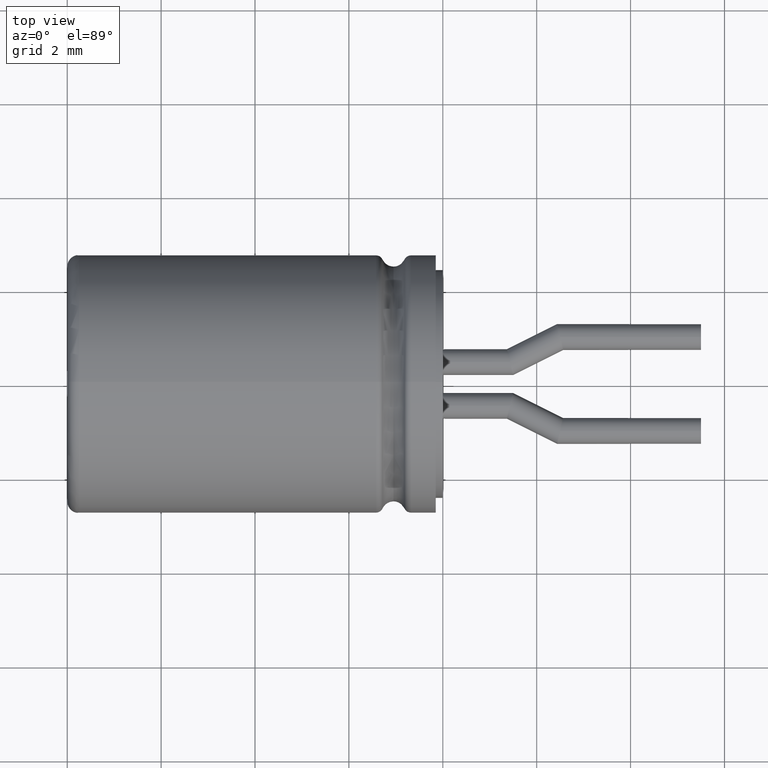
[diagram: clean part render]
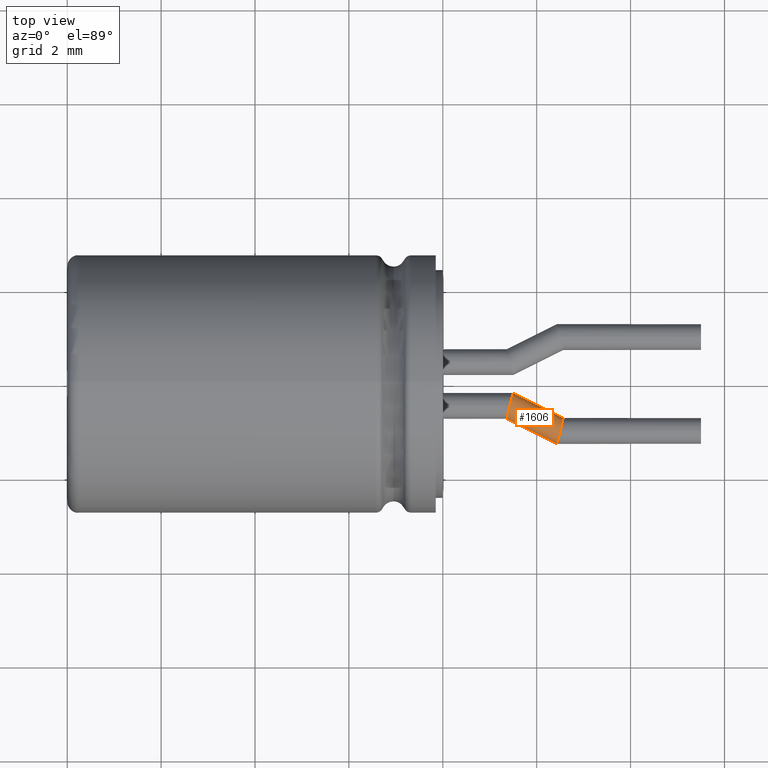
[diagram: same view with one face highlighted and labeled with its STEP entity id]
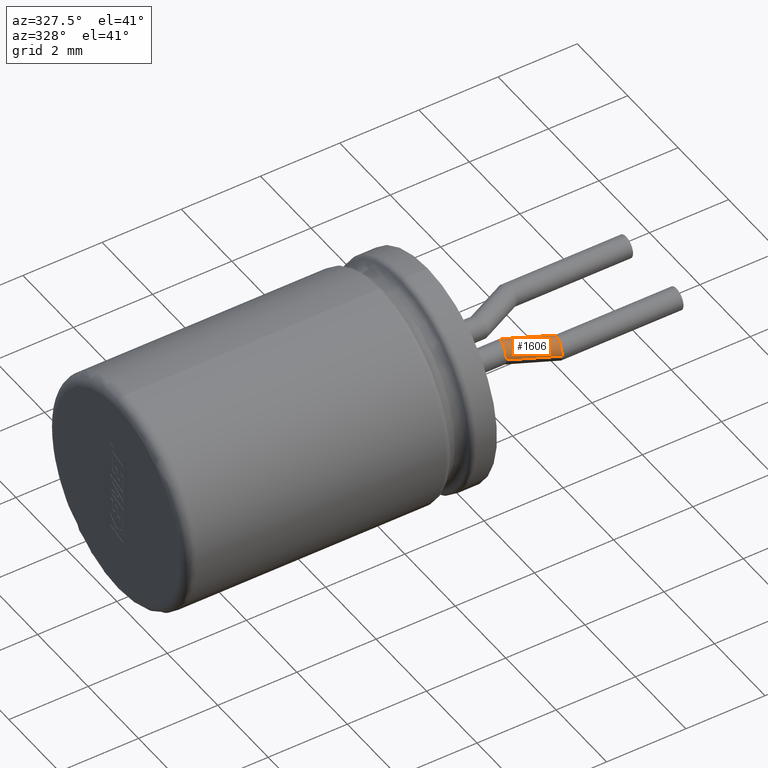
[diagram: same view with one face highlighted and labeled with its STEP entity id]
A machine part, top view. The second image highlights one B-rep face of the part: STEP entity #1606.
A second angle (auxiliary view) of the same face is appended — the face is thin or edge-on in the first view.
In plain terms, the highlighted cylindrical surface (edge-blend (fillet) strip) has radius 0.275 mm, axis along (0.8946, -0.4469, 0).
Its self-contained STEP definition (entity closure, byte-faithful):
#167 = CARTESIAN_POINT ( 'NONE',  ( 9.494875275735923400, -0.1903999999999998700, 0.1610912703473988700 ) ) ;
#180 = CARTESIAN_POINT ( 'NONE',  ( 10.46199694333658800, -1.161091270347399000, 0.2750000000000000800 ) ) ;
#246 = DIRECTION ( 'NONE',  ( 0.8945609171075592500, -0.4469460432576649000, 0.0000000000000000000 ) ) ;
#334 = VERTEX_POINT ( 'NONE', #816 ) ;
#461 = CARTESIAN_POINT ( 'NONE',  ( 9.430000000000001500, -0.4653999999999999200, 0.2750000000000000200 ) ) ;
#487 = CARTESIAN_POINT ( 'NONE',  ( 9.365124724264076100, -0.7404000000000000600, 3.367778697655221300E-017 ) ) ;
#517 = CARTESIAN_POINT ( 'NONE',  ( 10.50000000000000000, -1.000000000000000000, 0.2750000000000000200 ) ) ;
#572 = VECTOR ( 'NONE', #3771, 1000.000000000000000 ) ;
#644 = EDGE_CURVE ( 'NONE', #3627, #334, #959, .T. ) ;
#669 =( BOUNDED_CURVE ( )  B_SPLINE_CURVE ( 3, ( #461, #2051, #167, #3654 ),
 .UNSPECIFIED., .F., .F. ) 
 B_SPLINE_CURVE_WITH_KNOTS ( ( 4, 4 ),
 ( 1.570796326794896800, 3.141592653589793100 ),
 .UNSPECIFIED. ) 
 CURVE ( )  GEOMETRIC_REPRESENTATION_ITEM ( )  RATIONAL_B_SPLINE_CURVE ( ( 1.000000000000000000, 0.8047378541243650500, 0.8047378541243650500, 1.000000000000000000 ) ) 
 REPRESENTATION_ITEM ( '' )  );
#752 = DIRECTION ( 'NONE',  ( 0.8945609171075592500, -0.4469460432576649000, 0.0000000000000000000 ) ) ;
#816 = CARTESIAN_POINT ( 'NONE',  ( 10.43512472426407600, -1.275000000000000400, 3.367778697655221300E-017 ) ) ;
#914 = CYLINDRICAL_SURFACE ( 'NONE', #2219, 0.2750000000000001900 ) ;
#959 = LINE ( 'NONE', #1575, #572 ) ;
#1086 = ORIENTED_EDGE ( 'NONE', *, *, #2943, .F. ) ;
#1098 = CARTESIAN_POINT ( 'NONE',  ( 10.56487527573592500, -0.7249999999999998700, 0.0000000000000000000 ) ) ;
#1101 = VERTEX_POINT ( 'NONE', #1766 ) ;
#1165 = VECTOR ( 'NONE', #246, 1000.000000000000000 ) ;
#1220 = ORIENTED_EDGE ( 'NONE', *, *, #644, .T. ) ;
#1384 = ORIENTED_EDGE ( 'NONE', *, *, #3140, .F. ) ;
#1448 = CARTESIAN_POINT ( 'NONE',  ( 9.494875275735925200, -0.1903999999999997400, 0.0000000000000000000 ) ) ;
#1544 = EDGE_LOOP ( 'NONE', ( #1086, #1220, #2524, #1384, #3223, #3790 ) ) ;
#1575 = CARTESIAN_POINT ( 'NONE',  ( 9.307089838104142000, -0.7114042522045787000, 3.367778697655221300E-017 ) ) ;
#1606 = ADVANCED_FACE ( 'NONE', ( #3531 ), #914, .T. ) ;
#1713 = CARTESIAN_POINT ( 'NONE',  ( 10.50000000000000000, -1.000000000000000000, 0.2750000000000000200 ) ) ;
#1721 = DIRECTION ( 'NONE',  ( 0.4469460432576659000, 0.8945609171075587000, 0.0000000000000000000 ) ) ;
#1766 = CARTESIAN_POINT ( 'NONE',  ( 10.56487527573592500, -0.7249999999999998700, 0.0000000000000000000 ) ) ;
#1858 = EDGE_CURVE ( 'NONE', #3107, #1101, #2006, .T. ) ;
#2006 = LINE ( 'NONE', #3715, #1165 ) ;
#2039 =( BOUNDED_CURVE ( )  B_SPLINE_CURVE ( 3, ( #2354, #180, #3950, #2376 ),
 .UNSPECIFIED., .F., .T. ) 
 B_SPLINE_CURVE_WITH_KNOTS ( ( 4, 4 ),
 ( 4.712388980384689700, 6.283185307179586200 ),
 .UNSPECIFIED. ) 
 CURVE ( )  GEOMETRIC_REPRESENTATION_ITEM ( )  RATIONAL_B_SPLINE_CURVE ( ( 1.000000000000000000, 0.8047378541243649400, 0.8047378541243649400, 1.000000000000000000 ) ) 
 REPRESENTATION_ITEM ( '' )  );
#2051 = CARTESIAN_POINT ( 'NONE',  ( 9.468003056663411200, -0.3043087296526010300, 0.2749999999999999700 ) ) ;
#2219 = AXIS2_PLACEMENT_3D ( 'NONE', #2653, #752, #1721 ) ;
#2266 =( BOUNDED_CURVE ( )  B_SPLINE_CURVE ( 3, ( #1098, #2985, #3617, #1713 ),
 .UNSPECIFIED., .F., .T. ) 
 B_SPLINE_CURVE_WITH_KNOTS ( ( 4, 4 ),
 ( 3.141592653589793100, 4.712388980384689700 ),
 .UNSPECIFIED. ) 
 CURVE ( )  GEOMETRIC_REPRESENTATION_ITEM ( )  RATIONAL_B_SPLINE_CURVE ( ( 1.000000000000000000, 0.8047378541243649400, 0.8047378541243649400, 1.000000000000000000 ) ) 
 REPRESENTATION_ITEM ( '' )  );
#2278 = CARTESIAN_POINT ( 'NONE',  ( 9.365124724264076100, -0.7404000000000000600, 3.367778697655221300E-017 ) ) ;
#2354 = CARTESIAN_POINT ( 'NONE',  ( 10.50000000000000000, -1.000000000000000000, 0.2750000000000000200 ) ) ;
#2376 = CARTESIAN_POINT ( 'NONE',  ( 10.43512472426407600, -1.275000000000000400, 3.367778697655221300E-017 ) ) ;
#2524 = ORIENTED_EDGE ( 'NONE', *, *, #3610, .F. ) ;
#2552 = EDGE_CURVE ( 'NONE', #2625, #3107, #669, .T. ) ;
#2609 = CARTESIAN_POINT ( 'NONE',  ( 9.365124724264076100, -0.7403999999999999500, 0.1610912703473988100 ) ) ;
#2625 = VERTEX_POINT ( 'NONE', #3696 ) ;
#2641 = CARTESIAN_POINT ( 'NONE',  ( 9.391996943336590000, -0.6264912703473987100, 0.2750000000000000200 ) ) ;
#2653 = CARTESIAN_POINT ( 'NONE',  ( 9.430000000000001500, -0.4653999999999999200, 0.0000000000000000000 ) ) ;
#2943 = EDGE_CURVE ( 'NONE', #3627, #2625, #3006, .T. ) ;
#2985 = CARTESIAN_POINT ( 'NONE',  ( 10.56487527573592500, -0.7249999999999998700, 0.1610912703473988100 ) ) ;
#3006 =( BOUNDED_CURVE ( )  B_SPLINE_CURVE ( 3, ( #2278, #2609, #2641, #3257 ),
 .UNSPECIFIED., .F., .F. ) 
 B_SPLINE_CURVE_WITH_KNOTS ( ( 4, 4 ),
 ( 0.0000000000000000000, 1.570796326794896800 ),
 .UNSPECIFIED. ) 
 CURVE ( )  GEOMETRIC_REPRESENTATION_ITEM ( )  RATIONAL_B_SPLINE_CURVE ( ( 1.000000000000000000, 0.8047378541243649400, 0.8047378541243649400, 1.000000000000000000 ) ) 
 REPRESENTATION_ITEM ( '' )  );
#3107 = VERTEX_POINT ( 'NONE', #1448 ) ;
#3140 = EDGE_CURVE ( 'NONE', #1101, #3676, #2266, .T. ) ;
#3223 = ORIENTED_EDGE ( 'NONE', *, *, #1858, .F. ) ;
#3257 = CARTESIAN_POINT ( 'NONE',  ( 9.430000000000001500, -0.4653999999999999200, 0.2750000000000000200 ) ) ;
#3531 = FACE_OUTER_BOUND ( 'NONE', #1544, .T. ) ;
#3610 = EDGE_CURVE ( 'NONE', #3676, #334, #2039, .T. ) ;
#3617 = CARTESIAN_POINT ( 'NONE',  ( 10.53800305666341200, -0.8389087296526008800, 0.2749999999999999700 ) ) ;
#3627 = VERTEX_POINT ( 'NONE', #487 ) ;
#3654 = CARTESIAN_POINT ( 'NONE',  ( 9.494875275735925200, -0.1903999999999997400, 0.0000000000000000000 ) ) ;
#3676 = VERTEX_POINT ( 'NONE', #517 ) ;
#3696 = CARTESIAN_POINT ( 'NONE',  ( 9.430000000000001500, -0.4653999999999999200, 0.2750000000000000200 ) ) ;
#3715 = CARTESIAN_POINT ( 'NONE',  ( 9.552910161895859200, -0.2193957477954211200, 0.0000000000000000000 ) ) ;
#3771 = DIRECTION ( 'NONE',  ( 0.8945609171075592500, -0.4469460432576649000, 0.0000000000000000000 ) ) ;
#3790 = ORIENTED_EDGE ( 'NONE', *, *, #2552, .F. ) ;
#3950 = CARTESIAN_POINT ( 'NONE',  ( 10.43512472426407500, -1.275000000000000100, 0.1610912703473988100 ) ) ;